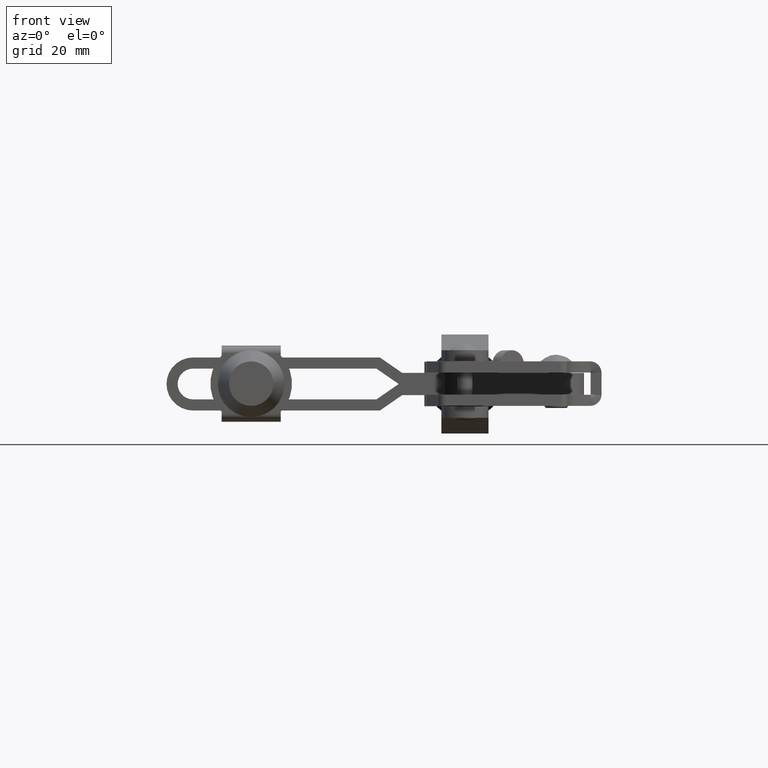
[diagram: clean part render]
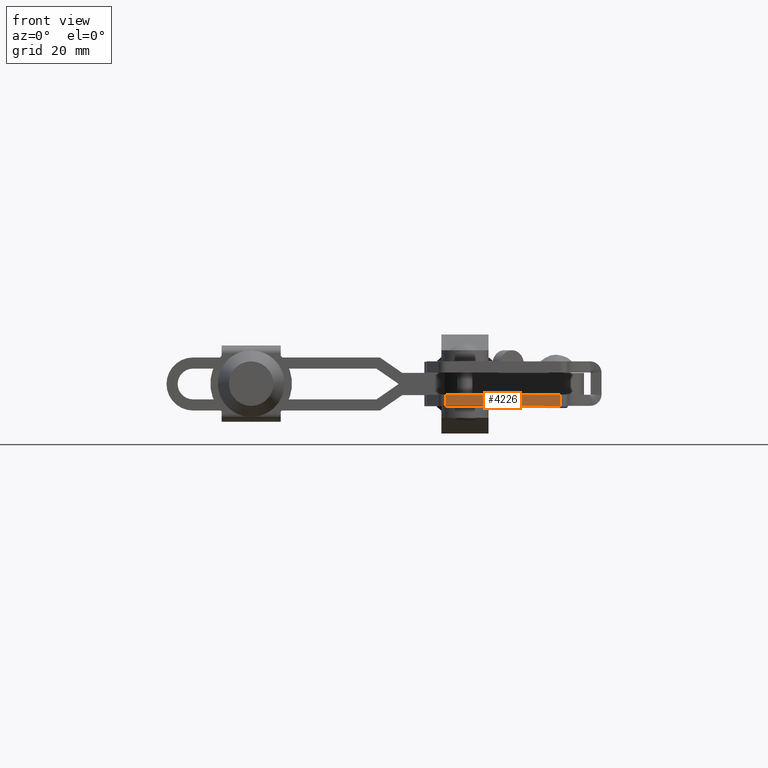
[diagram: same view with one face highlighted and labeled with its STEP entity id]
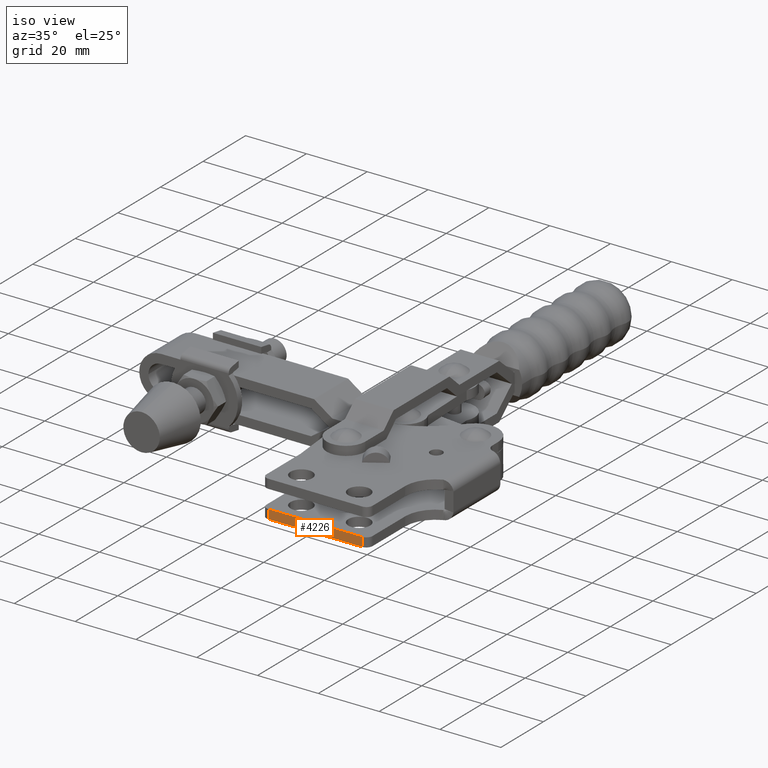
[diagram: same view with one face highlighted and labeled with its STEP entity id]
A machine part, front view. The second image highlights one B-rep face of the part: STEP entity #4226.
A second angle (iso view) of the same face is appended — the face is thin or edge-on in the first view.
In plain terms, the highlighted planar face has unit normal (-0, -1, -0).
Its self-contained STEP definition (entity closure, byte-faithful):
#54 = LINE ( 'NONE', #2968, #5015 ) ;
#830 = LINE ( 'NONE', #8168, #10754 ) ;
#922 = DIRECTION ( 'NONE',  ( -1.000000000000000000, 1.361850839637407300E-016, -7.034546684939453800E-018 ) ) ;
#1889 = AXIS2_PLACEMENT_3D ( 'NONE', #11449, #5516, #12439 ) ;
#1943 = CARTESIAN_POINT ( 'NONE',  ( -42.00000000000016300, -15.00000000000019400, -3.000000000000012900 ) ) ;
#2596 = EDGE_CURVE ( 'NONE', #10022, #9302, #10566, .T. ) ;
#2968 = CARTESIAN_POINT ( 'NONE',  ( -39.00000000000007100, -15.00000000000019400, -6.000000000000014200 ) ) ;
#4027 = EDGE_CURVE ( 'NONE', #10614, #9563, #10525, .T. ) ;
#4226 = ADVANCED_FACE ( 'NONE', ( #9034 ), #4507, .T. ) ;
#4320 = CARTESIAN_POINT ( 'NONE',  ( -42.00000000000016300, -15.00000000000019400, -6.000000000000014200 ) ) ;
#4466 = ORIENTED_EDGE ( 'NONE', *, *, #11188, .F. ) ;
#4507 = PLANE ( 'NONE',  #1889 ) ;
#4570 = ORIENTED_EDGE ( 'NONE', *, *, #4027, .T. ) ;
#4600 = CARTESIAN_POINT ( 'NONE',  ( -42.00000000000016300, -15.00000000000019400, -3.000000000000012900 ) ) ;
#4615 = CARTESIAN_POINT ( 'NONE',  ( -11.10000000000014500, -15.00000000000019700, -3.000000000000012900 ) ) ;
#4838 = ORIENTED_EDGE ( 'NONE', *, *, #2596, .T. ) ;
#4872 = CARTESIAN_POINT ( 'NONE',  ( -11.10000000000014500, -15.00000000000019700, -3.000000000000012900 ) ) ;
#5015 = VECTOR ( 'NONE', #922, 1000.000000000000000 ) ;
#5516 = DIRECTION ( 'NONE',  ( -1.361850839637407300E-016, -1.000000000000000000, -3.150134990220477600E-018 ) ) ;
#6851 = EDGE_LOOP ( 'NONE', ( #9372, #4838, #4466, #4570 ) ) ;
#6967 = DIRECTION ( 'NONE',  ( 7.034546684939453800E-018, 3.150134990220476900E-018, -1.000000000000000000 ) ) ;
#7226 = DIRECTION ( 'NONE',  ( -1.000000000000000000, 1.361850839637407300E-016, -7.034546684939453800E-018 ) ) ;
#7851 = VECTOR ( 'NONE', #8621, 1000.000000000000000 ) ;
#8168 = CARTESIAN_POINT ( 'NONE',  ( -39.00000000000006400, -15.00000000000019400, -3.000000000000012900 ) ) ;
#8621 = DIRECTION ( 'NONE',  ( -7.034546684939443100E-018, -3.150134990220476900E-018, 1.000000000000000000 ) ) ;
#9034 = FACE_OUTER_BOUND ( 'NONE', #6851, .T. ) ;
#9302 = VERTEX_POINT ( 'NONE', #4320 ) ;
#9372 = ORIENTED_EDGE ( 'NONE', *, *, #9761, .T. ) ;
#9503 = CARTESIAN_POINT ( 'NONE',  ( -11.10000000000014500, -15.00000000000019700, -6.000000000000014200 ) ) ;
#9563 = VERTEX_POINT ( 'NONE', #4872 ) ;
#9761 = EDGE_CURVE ( 'NONE', #9563, #10022, #830, .T. ) ;
#10022 = VERTEX_POINT ( 'NONE', #4600 ) ;
#10249 = VECTOR ( 'NONE', #6967, 1000.000000000000000 ) ;
#10525 = LINE ( 'NONE', #4615, #7851 ) ;
#10566 = LINE ( 'NONE', #1943, #10249 ) ;
#10614 = VERTEX_POINT ( 'NONE', #9503 ) ;
#10754 = VECTOR ( 'NONE', #7226, 1000.000000000000000 ) ;
#11188 = EDGE_CURVE ( 'NONE', #10614, #9302, #54, .T. ) ;
#11449 = CARTESIAN_POINT ( 'NONE',  ( -39.00000000000006400, -15.00000000000019400, -3.000000000000012900 ) ) ;
#12439 = DIRECTION ( 'NONE',  ( -1.000000000000000000, 1.361850839637407300E-016, -7.034546684939453800E-018 ) ) ;